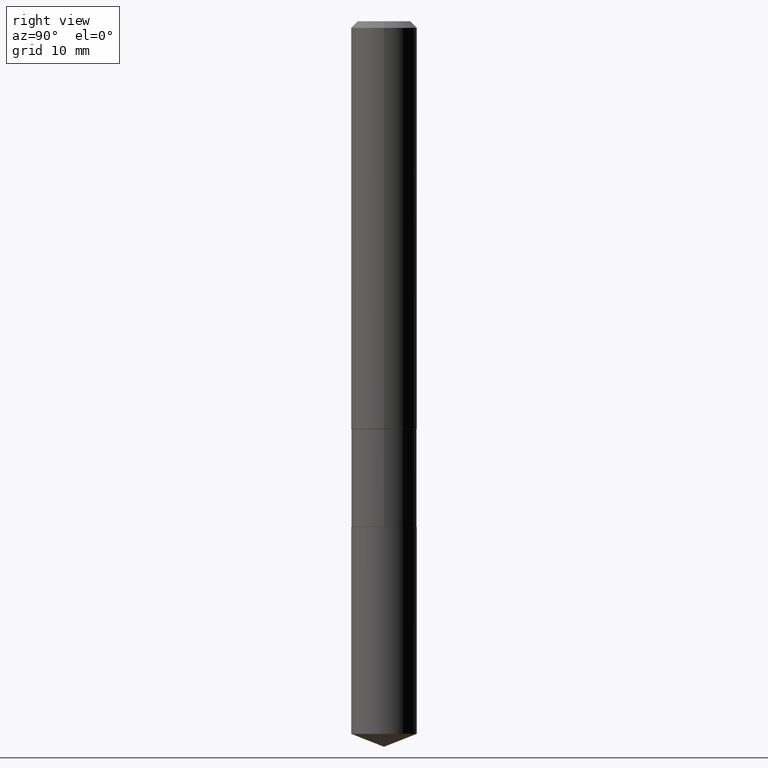
[diagram: clean part render]
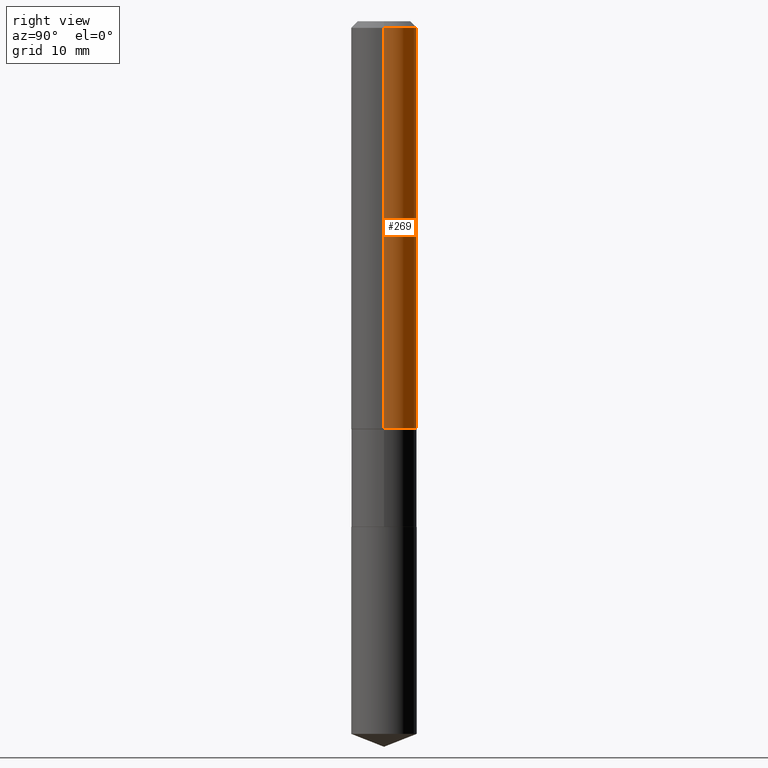
[diagram: same view with one face highlighted and labeled with its STEP entity id]
A machine part, right view. The second image highlights one B-rep face of the part: STEP entity #269.
In plain terms, the highlighted cylindrical surface (edge-blend (fillet) strip) has radius 2.9997 mm, axis along (-0, 0, 1).
Its self-contained STEP definition (entity closure, byte-faithful):
#3 = EDGE_CURVE ( 'NONE', #216, #64, #41, .T. ) ;
#4 = ORIENTED_EDGE ( 'NONE', *, *, #467, .F. ) ;
#11 = CARTESIAN_POINT ( 'NONE',  ( 3.570139910149679929E-29, -5.097213606577107280E-15, -1.459899999999999531 ) ) ;
#35 = VERTEX_POINT ( 'NONE', #343 ) ;
#41 = LINE ( 'NONE', #228, #144 ) ;
#48 = EDGE_LOOP ( 'NONE', ( #182, #364, #446, #4 ) ) ;
#64 = VERTEX_POINT ( 'NONE', #384 ) ;
#78 = DIRECTION ( 'NONE',  ( 1.000000000000000000, -6.982962677686266711E-15, 0.000000000000000000 ) ) ;
#88 = VERTEX_POINT ( 'NONE', #165 ) ;
#129 = EDGE_CURVE ( 'NONE', #88, #64, #407, .T. ) ;
#137 = CARTESIAN_POINT ( 'NONE',  ( 0.000000000000000000, 0.000000000000000000, 0.000000000000000000 ) ) ;
#144 = VECTOR ( 'NONE', #430, 39.37007874015748143 ) ;
#155 = EDGE_CURVE ( 'NONE', #35, #216, #459, .T. ) ;
#165 = CARTESIAN_POINT ( 'NONE',  ( 0.1180999999999999966, -9.071566814582237199E-16, -0.02362000000000014088 ) ) ;
#182 = ORIENTED_EDGE ( 'NONE', *, *, #155, .T. ) ;
#213 = DIRECTION ( 'NONE',  ( -2.445468806185136877E-29, 3.491481338843145188E-15, 1.000000000000000000 ) ) ;
#216 = VERTEX_POINT ( 'NONE', #233 ) ;
#228 = CARTESIAN_POINT ( 'NONE',  ( -0.1181000000000000799, 8.391509709326788873E-16, -5.809262341591047988E-30 ) ) ;
#233 = CARTESIAN_POINT ( 'NONE',  ( -0.1181000000000001632, -4.258062635644427505E-15, -1.459899999999999531 ) ) ;
#234 = CARTESIAN_POINT ( 'NONE',  ( 5.776197320209327532E-31, -8.246878922347559293E-17, -0.02362000000000014088 ) ) ;
#239 = CYLINDRICAL_SURFACE ( 'NONE', #387, 0.1181000000000000799 ) ;
#245 = LINE ( 'NONE', #475, #389 ) ;
#269 = ADVANCED_FACE ( 'NONE', ( #270 ), #239, .T. ) ;
#270 = FACE_OUTER_BOUND ( 'NONE', #48, .T. ) ;
#277 = AXIS2_PLACEMENT_3D ( 'NONE', #11, #479, #333 ) ;
#299 = AXIS2_PLACEMENT_3D ( 'NONE', #234, #352, #78 ) ;
#317 = DIRECTION ( 'NONE',  ( -2.445468806185136597E-29, 3.491481338843145583E-15, 1.000000000000000000 ) ) ;
#333 = DIRECTION ( 'NONE',  ( 1.000000000000000000, -6.982962677686270655E-15, 0.000000000000000000 ) ) ;
#343 = CARTESIAN_POINT ( 'NONE',  ( 0.1181000000000001632, -5.921901498811854753E-15, -1.459899999999999531 ) ) ;
#352 = DIRECTION ( 'NONE',  ( -2.445468806185136597E-29, 3.491481338843145583E-15, 1.000000000000000000 ) ) ;
#364 = ORIENTED_EDGE ( 'NONE', *, *, #3, .T. ) ;
#384 = CARTESIAN_POINT ( 'NONE',  ( -0.1180999999999999966, -1.750690226967611791E-15, -0.02362000000000014088 ) ) ;
#387 = AXIS2_PLACEMENT_3D ( 'NONE', #137, #317, #431 ) ;
#389 = VECTOR ( 'NONE', #213, 39.37007874015748143 ) ;
#407 = CIRCLE ( 'NONE', #299, 0.1180999999999999966 ) ;
#430 = DIRECTION ( 'NONE',  ( -2.445468806185136877E-29, 3.491481338843145188E-15, 1.000000000000000000 ) ) ;
#431 = DIRECTION ( 'NONE',  ( 1.000000000000000000, -6.982962677686266711E-15, 4.876176775795936353E-29 ) ) ;
#446 = ORIENTED_EDGE ( 'NONE', *, *, #129, .F. ) ;
#459 = CIRCLE ( 'NONE', #277, 0.1181000000000001632 ) ;
#467 = EDGE_CURVE ( 'NONE', #35, #88, #245, .T. ) ;
#475 = CARTESIAN_POINT ( 'NONE',  ( 0.1181000000000000799, -8.246878922347486570E-16, 5.758764772215004644E-30 ) ) ;
#479 = DIRECTION ( 'NONE',  ( -2.445468806185136597E-29, 3.491481338843145583E-15, 1.000000000000000000 ) ) ;